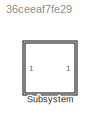
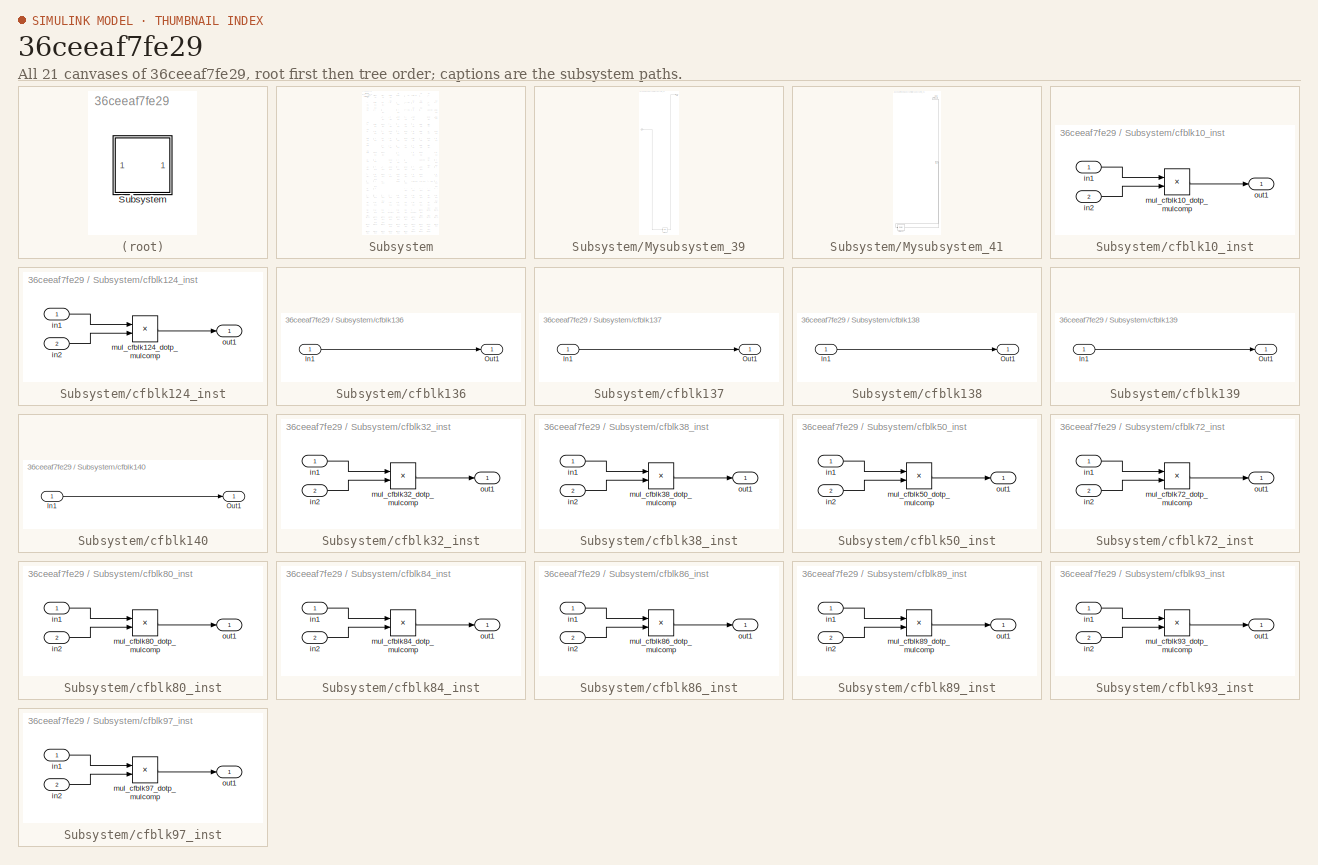
[diagram: thumbnail index - all 21 canvases of the model, root first then tree order]
MODEL slx_36ceeaf7fe29
KIND model
CONFIG AbsTol = auto
CONFIG EnableMultiTasking = off
CONFIG FixedStep = auto
CONFIG MaxStep = auto
CONFIG MinStep = auto
CONFIG RelTol = 1e-3
CONFIG SampleTimeConstraint = Unconstrained
CONFIG SolverName = VariableStepAuto
CONFIG StartTime = 0.0
CONFIG StopTime = 10.0
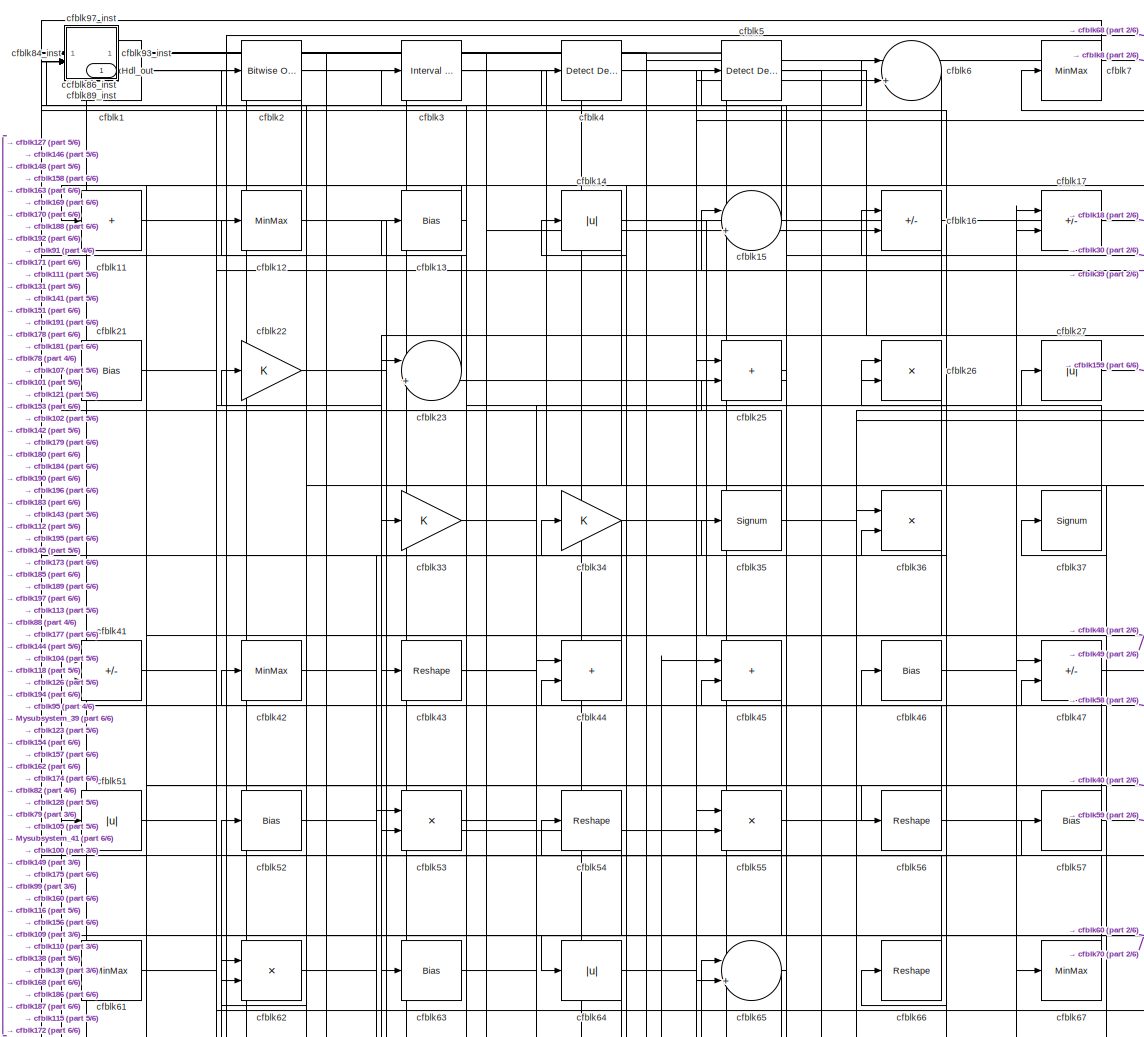
[diagram: Subsystem - part 1/6, top center region]
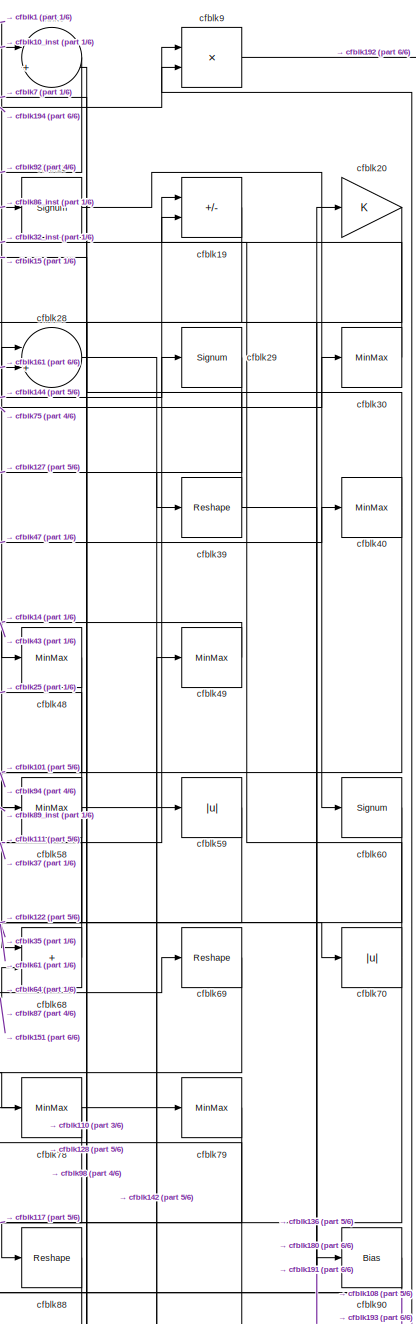
[diagram: Subsystem - part 2/6, top right region]
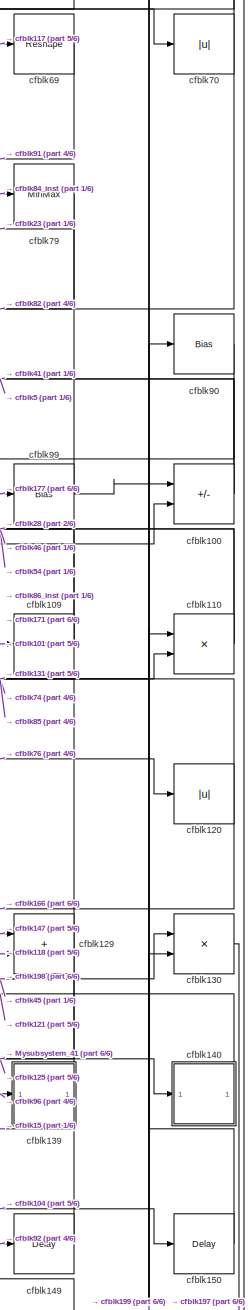
[diagram: Subsystem - part 3/6, middle right region]
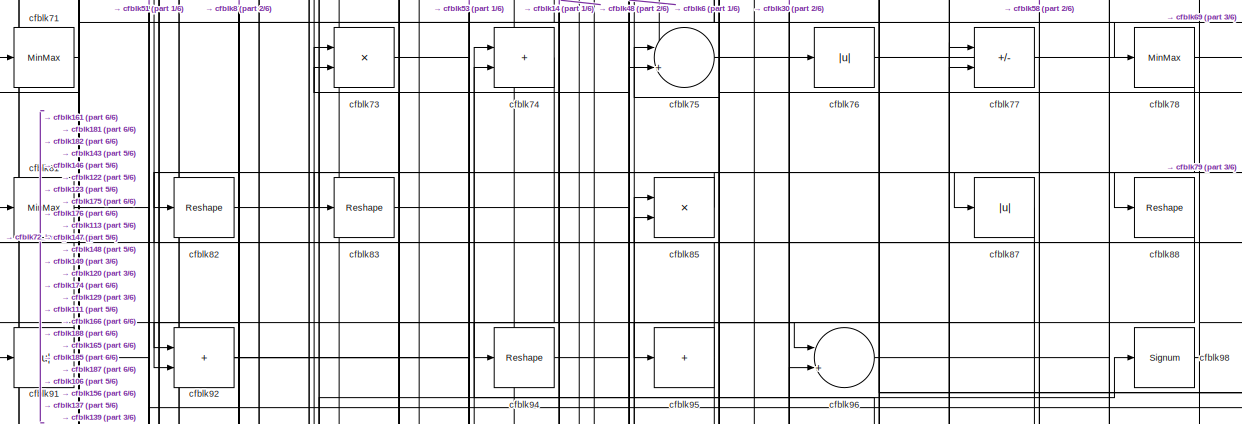
[diagram: Subsystem - part 4/6, full width, middle band]
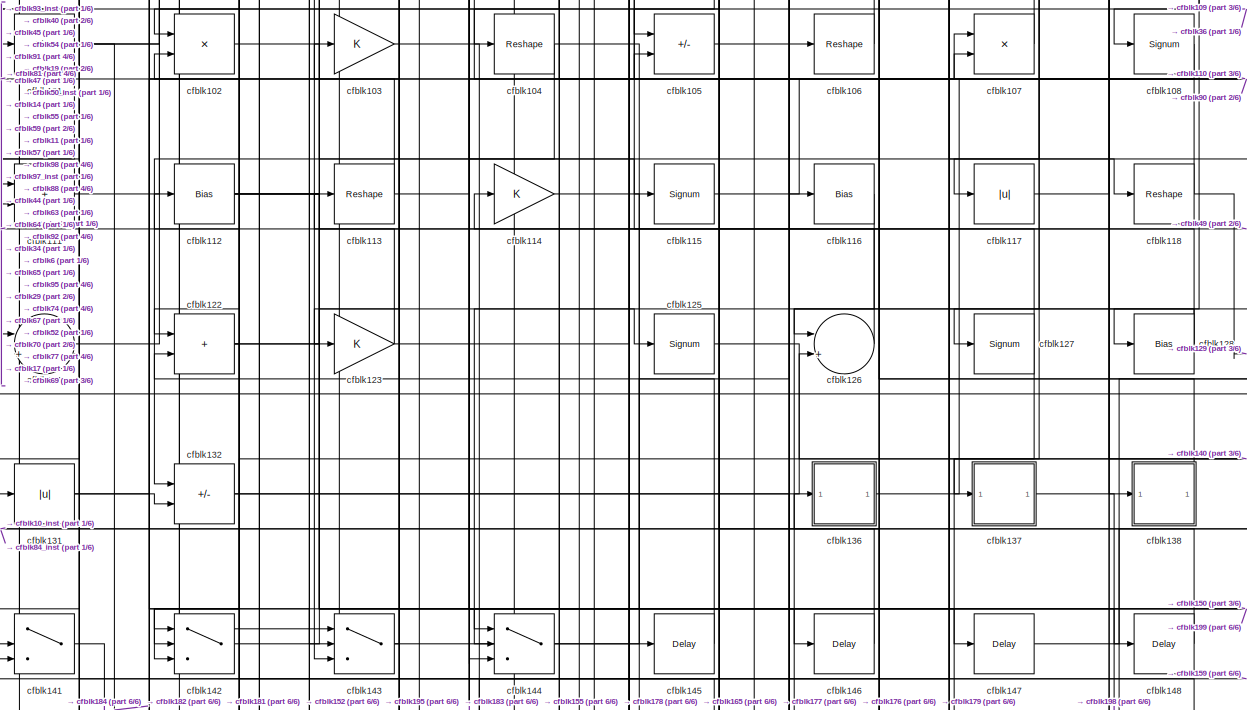
[diagram: Subsystem - part 5/6, full width, middle band]
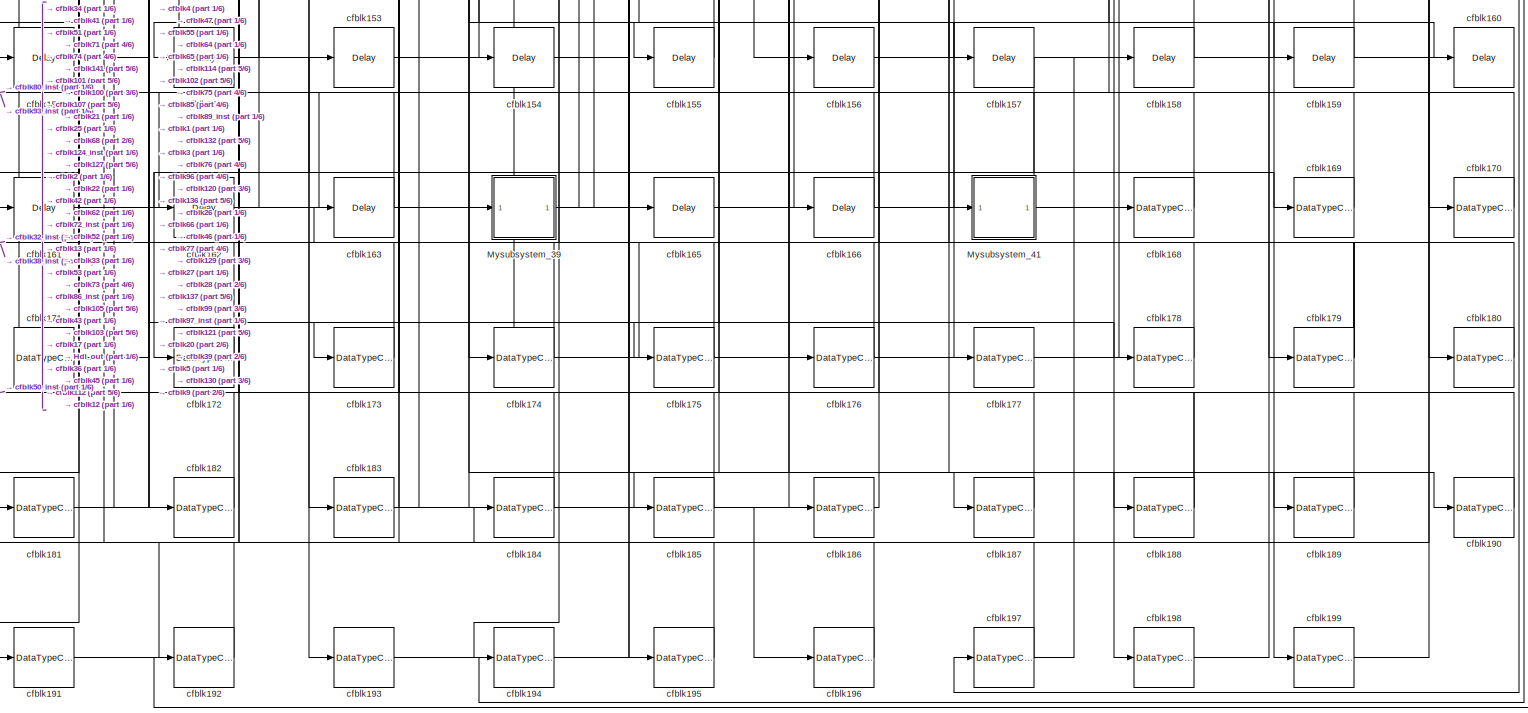
[diagram: Subsystem - part 6/6, full width, bottom band]
BLOCK [SubSystem] Subsystem
BLOCK [Outport] Subsystem/Hdl_out
  OutDataTypeStr = uint8
  SampleTime = 1
BLOCK [SubSystem] Subsystem/Mysubsystem_39
BLOCK [Inport] Subsystem/Mysubsystem_39/In1
  OutDataTypeStr = uint8
  PortDimensions = 1
  SampleTime = 1
BLOCK [Outport] Subsystem/Mysubsystem_39/Out1
  SampleTime = 1
BLOCK [Delay] Subsystem/Mysubsystem_39/cfblk164
  InputPortMap = u0
  SampleTime = 1
BLOCK [SubSystem] Subsystem/Mysubsystem_41
BLOCK [Inport] Subsystem/Mysubsystem_41/In1
  OutDataTypeStr = uint8
  PortDimensions = 1
  SampleTime = 1
BLOCK [Outport] Subsystem/Mysubsystem_41/Out1
  SampleTime = 1
BLOCK [Delay] Subsystem/Mysubsystem_41/cfblk167
  InputPortMap = u0
  SampleTime = 1
BLOCK [Reference] Subsystem/cfblk1  REF=hdlsllib/Logic and Bit
Operations/Bit Slice
  SourceBlock = hdlsllib/Logic and Bit\nOperations/Bit Slice
  SourceType = Bit Slice
BLOCK [Sum] Subsystem/cfblk100
  IconShape = rectangular
  Inputs = +-
  OutDataTypeStr = uint8
BLOCK [Bias] Subsystem/cfblk101
  Bias = 0.0
  SaturateOnIntegerOverflow = off
BLOCK [Product] Subsystem/cfblk102
  Inputs = */
  OutDataTypeStr = uint8
  RndMeth = Zero
  SaturateOnIntegerOverflow = on
BLOCK [Gain] Subsystem/cfblk103
  OutDataTypeStr = uint8
BLOCK [Reshape] Subsystem/cfblk104
BLOCK [Sum] Subsystem/cfblk105
  IconShape = rectangular
  Inputs = +-
  OutDataTypeStr = uint8
BLOCK [Reshape] Subsystem/cfblk106
BLOCK [Product] Subsystem/cfblk107
  Inputs = */
  OutDataTypeStr = uint8
  RndMeth = Zero
  SaturateOnIntegerOverflow = on
BLOCK [Signum] Subsystem/cfblk108
BLOCK [Bias] Subsystem/cfblk109
  Bias = 0.0
  SaturateOnIntegerOverflow = off
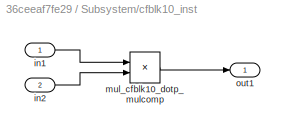
BLOCK [SubSystem] Subsystem/cfblk10_inst
BLOCK [Inport] Subsystem/cfblk10_inst/in1
  OutDataTypeStr = uint8
  SampleTime = 1
BLOCK [Inport] Subsystem/cfblk10_inst/in2
  OutDataTypeStr = uint8
  Port = 2
  SampleTime = 1
BLOCK [Product] Subsystem/cfblk10_inst/mul_cfblk10_dotp_mulcomp
  Inputs = **
  OutDataTypeStr = uint8
  SampleTime = 1
BLOCK [Outport] Subsystem/cfblk10_inst/out1
  OutDataTypeStr = uint8
  SampleTime = 1
BLOCK [Sum] Subsystem/cfblk11
  IconShape = rectangular
  Inputs = +
  OutDataTypeStr = uint8
BLOCK [Product] Subsystem/cfblk110
  Inputs = */
  OutDataTypeStr = uint8
  RndMeth = Zero
  SaturateOnIntegerOverflow = on
BLOCK [Sum] Subsystem/cfblk111
  IconShape = rectangular
  OutDataTypeStr = uint8
BLOCK [Bias] Subsystem/cfblk112
  Bias = 0.0
  SaturateOnIntegerOverflow = off
BLOCK [Reshape] Subsystem/cfblk113
BLOCK [Gain] Subsystem/cfblk114
  OutDataTypeStr = uint8
BLOCK [Signum] Subsystem/cfblk115
BLOCK [Bias] Subsystem/cfblk116
  Bias = 0.0
  SaturateOnIntegerOverflow = off
BLOCK [Abs] Subsystem/cfblk117
  OutDataTypeStr = uint8
  SaturateOnIntegerOverflow = off
BLOCK [Reshape] Subsystem/cfblk118
BLOCK [MinMax] Subsystem/cfblk12
  OutDataTypeStr = uint8
BLOCK [Abs] Subsystem/cfblk120
  OutDataTypeStr = uint8
  SaturateOnIntegerOverflow = off
BLOCK [Sum] Subsystem/cfblk121
  Inputs = |++
  OutDataTypeStr = uint8
BLOCK [Sum] Subsystem/cfblk122
  IconShape = rectangular
  OutDataTypeStr = uint8
BLOCK [Gain] Subsystem/cfblk123
  OutDataTypeStr = uint8
BLOCK [SubSystem] Subsystem/cfblk124_inst
BLOCK [Inport] Subsystem/cfblk124_inst/in1
  OutDataTypeStr = uint8
  SampleTime = 1
BLOCK [Inport] Subsystem/cfblk124_inst/in2
  OutDataTypeStr = uint8
  Port = 2
  SampleTime = 1
BLOCK [Product] Subsystem/cfblk124_inst/mul_cfblk124_dotp_mulcomp
  Inputs = **
  OutDataTypeStr = uint8
  SampleTime = 1
BLOCK [Outport] Subsystem/cfblk124_inst/out1
  OutDataTypeStr = uint8
  SampleTime = 1
BLOCK [Signum] Subsystem/cfblk125
BLOCK [Sum] Subsystem/cfblk126
  Inputs = |++
  OutDataTypeStr = uint8
BLOCK [Signum] Subsystem/cfblk127
BLOCK [Bias] Subsystem/cfblk128
  Bias = 0.0
  SaturateOnIntegerOverflow = off
BLOCK [Sum] Subsystem/cfblk129
  IconShape = rectangular
  OutDataTypeStr = uint8
BLOCK [Bias] Subsystem/cfblk13
  Bias = 0.0
  SaturateOnIntegerOverflow = off
BLOCK [Product] Subsystem/cfblk130
  Inputs = */
  OutDataTypeStr = uint8
  RndMeth = Zero
  SaturateOnIntegerOverflow = on
BLOCK [Abs] Subsystem/cfblk131
  OutDataTypeStr = uint8
  SaturateOnIntegerOverflow = off
BLOCK [Sum] Subsystem/cfblk132
  IconShape = rectangular
  Inputs = +-
  OutDataTypeStr = uint8
BLOCK [SubSystem] Subsystem/cfblk136
BLOCK [Inport] Subsystem/cfblk136/In1
  OutDataTypeStr = uint8
  PortDimensions = 1
  SampleTime = 1
BLOCK [Outport] Subsystem/cfblk136/Out1
  SampleTime = 1
BLOCK [SubSystem] Subsystem/cfblk137
BLOCK [Inport] Subsystem/cfblk137/In1
  OutDataTypeStr = uint8
  PortDimensions = 1
  SampleTime = 1
BLOCK [Outport] Subsystem/cfblk137/Out1
  SampleTime = 1
BLOCK [SubSystem] Subsystem/cfblk138
BLOCK [Inport] Subsystem/cfblk138/In1
  OutDataTypeStr = uint8
  PortDimensions = 1
  SampleTime = 1
BLOCK [Outport] Subsystem/cfblk138/Out1
  SampleTime = 1
BLOCK [SubSystem] Subsystem/cfblk139
BLOCK [Inport] Subsystem/cfblk139/In1
  OutDataTypeStr = uint8
  PortDimensions = 1
  SampleTime = 1
BLOCK [Outport] Subsystem/cfblk139/Out1
  SampleTime = 1
BLOCK [Abs] Subsystem/cfblk14
  OutDataTypeStr = uint8
  SaturateOnIntegerOverflow = off
BLOCK [SubSystem] Subsystem/cfblk140
BLOCK [Inport] Subsystem/cfblk140/In1
  OutDataTypeStr = uint8
  PortDimensions = 1
  SampleTime = 1
BLOCK [Outport] Subsystem/cfblk140/Out1
  SampleTime = 1
BLOCK [Switch] Subsystem/cfblk141
  InputSameDT = off
  OutDataTypeStr = uint8
  SaturateOnIntegerOverflow = off
BLOCK [Switch] Subsystem/cfblk142
  InputSameDT = off
  OutDataTypeStr = uint8
  SaturateOnIntegerOverflow = off
BLOCK [Switch] Subsystem/cfblk143
  InputSameDT = off
  OutDataTypeStr = uint8
  SaturateOnIntegerOverflow = off
BLOCK [Switch] Subsystem/cfblk144
  InputSameDT = off
  OutDataTypeStr = uint8
  SaturateOnIntegerOverflow = off
BLOCK [Delay] Subsystem/cfblk145
  InputPortMap = u0
  SampleTime = 1
BLOCK [Delay] Subsystem/cfblk146
  InputPortMap = u0
  SampleTime = 1
BLOCK [Delay] Subsystem/cfblk147
  InputPortMap = u0
  SampleTime = 1
BLOCK [Delay] Subsystem/cfblk148
  InputPortMap = u0
  SampleTime = 1
BLOCK [Delay] Subsystem/cfblk149
  InputPortMap = u0
  SampleTime = 1
BLOCK [Sum] Subsystem/cfblk15
  Inputs = |++
  OutDataTypeStr = uint8
BLOCK [Delay] Subsystem/cfblk150
  InputPortMap = u0
  SampleTime = 1
BLOCK [Delay] Subsystem/cfblk151
  InputPortMap = u0
  SampleTime = 1
BLOCK [Delay] Subsystem/cfblk152
  InputPortMap = u0
  SampleTime = 1
BLOCK [Delay] Subsystem/cfblk153
  InputPortMap = u0
  SampleTime = 1
BLOCK [Delay] Subsystem/cfblk154
  InputPortMap = u0
  SampleTime = 1
BLOCK [Delay] Subsystem/cfblk155
  InputPortMap = u0
  SampleTime = 1
BLOCK [Delay] Subsystem/cfblk156
  InputPortMap = u0
  SampleTime = 1
BLOCK [Delay] Subsystem/cfblk157
  InputPortMap = u0
  SampleTime = 1
BLOCK [Delay] Subsystem/cfblk158
  InputPortMap = u0
  SampleTime = 1
BLOCK [Delay] Subsystem/cfblk159
  InputPortMap = u0
  SampleTime = 1
BLOCK [Sum] Subsystem/cfblk16
  IconShape = rectangular
  Inputs = +-
  OutDataTypeStr = uint8
BLOCK [Delay] Subsystem/cfblk160
  InputPortMap = u0
  SampleTime = 1
BLOCK [Delay] Subsystem/cfblk161
  InputPortMap = u0
  SampleTime = 1
BLOCK [Delay] Subsystem/cfblk162
  InputPortMap = u0
  SampleTime = 1
BLOCK [Delay] Subsystem/cfblk163
  InputPortMap = u0
  SampleTime = 1
BLOCK [Delay] Subsystem/cfblk165
  InputPortMap = u0
  SampleTime = 1
BLOCK [Delay] Subsystem/cfblk166
  InputPortMap = u0
  SampleTime = 1
BLOCK [DataTypeConversion] Subsystem/cfblk168
  OutDataTypeStr = uint8
  RndMeth = Floor
  SaturateOnIntegerOverflow = off
BLOCK [DataTypeConversion] Subsystem/cfblk169
  OutDataTypeStr = uint8
  RndMeth = Floor
  SaturateOnIntegerOverflow = off
BLOCK [Sum] Subsystem/cfblk17
  IconShape = rectangular
  Inputs = +-
  OutDataTypeStr = uint8
BLOCK [DataTypeConversion] Subsystem/cfblk170
  OutDataTypeStr = uint8
  RndMeth = Floor
  SaturateOnIntegerOverflow = off
BLOCK [DataTypeConversion] Subsystem/cfblk171
  OutDataTypeStr = uint8
  RndMeth = Floor
  SaturateOnIntegerOverflow = off
BLOCK [DataTypeConversion] Subsystem/cfblk172
  OutDataTypeStr = uint8
  RndMeth = Floor
  SaturateOnIntegerOverflow = off
BLOCK [DataTypeConversion] Subsystem/cfblk173
  OutDataTypeStr = uint8
  RndMeth = Floor
  SaturateOnIntegerOverflow = off
BLOCK [DataTypeConversion] Subsystem/cfblk174
  OutDataTypeStr = uint8
  RndMeth = Floor
  SaturateOnIntegerOverflow = off
BLOCK [DataTypeConversion] Subsystem/cfblk175
  OutDataTypeStr = uint8
  RndMeth = Floor
  SaturateOnIntegerOverflow = off
BLOCK [DataTypeConversion] Subsystem/cfblk176
  OutDataTypeStr = uint8
  RndMeth = Floor
  SaturateOnIntegerOverflow = off
BLOCK [DataTypeConversion] Subsystem/cfblk177
  OutDataTypeStr = uint8
  RndMeth = Floor
  SaturateOnIntegerOverflow = off
BLOCK [DataTypeConversion] Subsystem/cfblk178
  OutDataTypeStr = uint8
  RndMeth = Floor
  SaturateOnIntegerOverflow = off
BLOCK [DataTypeConversion] Subsystem/cfblk179
  OutDataTypeStr = uint8
  RndMeth = Floor
  SaturateOnIntegerOverflow = off
BLOCK [Signum] Subsystem/cfblk18
BLOCK [DataTypeConversion] Subsystem/cfblk180
  OutDataTypeStr = uint8
  RndMeth = Floor
  SaturateOnIntegerOverflow = off
BLOCK [DataTypeConversion] Subsystem/cfblk181
  OutDataTypeStr = uint8
  RndMeth = Floor
  SaturateOnIntegerOverflow = off
BLOCK [DataTypeConversion] Subsystem/cfblk182
  OutDataTypeStr = uint8
  RndMeth = Floor
  SaturateOnIntegerOverflow = off
BLOCK [DataTypeConversion] Subsystem/cfblk183
  OutDataTypeStr = uint8
  RndMeth = Floor
  SaturateOnIntegerOverflow = off
BLOCK [DataTypeConversion] Subsystem/cfblk184
  OutDataTypeStr = uint8
  RndMeth = Floor
  SaturateOnIntegerOverflow = off
BLOCK [DataTypeConversion] Subsystem/cfblk185
  OutDataTypeStr = uint8
  RndMeth = Floor
  SaturateOnIntegerOverflow = off
BLOCK [DataTypeConversion] Subsystem/cfblk186
  OutDataTypeStr = uint8
  RndMeth = Floor
  SaturateOnIntegerOverflow = off
BLOCK [DataTypeConversion] Subsystem/cfblk187
  OutDataTypeStr = uint8
  RndMeth = Floor
  SaturateOnIntegerOverflow = off
BLOCK [DataTypeConversion] Subsystem/cfblk188
  OutDataTypeStr = uint8
  RndMeth = Floor
  SaturateOnIntegerOverflow = off
BLOCK [DataTypeConversion] Subsystem/cfblk189
  OutDataTypeStr = uint8
  RndMeth = Floor
  SaturateOnIntegerOverflow = off
BLOCK [Sum] Subsystem/cfblk19
  IconShape = rectangular
  Inputs = +-
  OutDataTypeStr = uint8
BLOCK [DataTypeConversion] Subsystem/cfblk190
  OutDataTypeStr = uint8
  RndMeth = Floor
  SaturateOnIntegerOverflow = off
BLOCK [DataTypeConversion] Subsystem/cfblk191
  OutDataTypeStr = uint8
  RndMeth = Floor
  SaturateOnIntegerOverflow = off
BLOCK [DataTypeConversion] Subsystem/cfblk192
  OutDataTypeStr = uint8
  RndMeth = Floor
  SaturateOnIntegerOverflow = off
BLOCK [DataTypeConversion] Subsystem/cfblk193
  OutDataTypeStr = uint8
  RndMeth = Floor
  SaturateOnIntegerOverflow = off
BLOCK [DataTypeConversion] Subsystem/cfblk194
  OutDataTypeStr = uint8
  RndMeth = Floor
  SaturateOnIntegerOverflow = off
BLOCK [DataTypeConversion] Subsystem/cfblk195
  OutDataTypeStr = uint8
  RndMeth = Floor
  SaturateOnIntegerOverflow = off
BLOCK [DataTypeConversion] Subsystem/cfblk196
  OutDataTypeStr = uint8
  RndMeth = Floor
  SaturateOnIntegerOverflow = off
BLOCK [DataTypeConversion] Subsystem/cfblk197
  OutDataTypeStr = uint8
  RndMeth = Floor
  SaturateOnIntegerOverflow = off
BLOCK [DataTypeConversion] Subsystem/cfblk198
  OutDataTypeStr = uint8
  RndMeth = Floor
  SaturateOnIntegerOverflow = off
BLOCK [DataTypeConversion] Subsystem/cfblk199
  OutDataTypeStr = uint8
  RndMeth = Floor
  SaturateOnIntegerOverflow = off
BLOCK [Reference] Subsystem/cfblk2  REF=simulink/Logic and Bit
Operations/Bitwise
Operator
  LibrarySourceBlock = hdlsllib/Logic and Bit\nOperations/Bitwise\nOperator
  SourceBlock = simulink/Logic and Bit\nOperations/Bitwise\nOperator
  SourceType = Bitwise Operator
BLOCK [Gain] Subsystem/cfblk20
  OutDataTypeStr = uint8
BLOCK [Bias] Subsystem/cfblk21
  Bias = 0.0
  SaturateOnIntegerOverflow = off
BLOCK [Gain] Subsystem/cfblk22
  OutDataTypeStr = uint8
BLOCK [Sum] Subsystem/cfblk23
  Inputs = |++
  OutDataTypeStr = uint8
BLOCK [Sum] Subsystem/cfblk25
  IconShape = rectangular
  OutDataTypeStr = uint8
BLOCK [Product] Subsystem/cfblk26
  Inputs = */
  OutDataTypeStr = uint8
  RndMeth = Zero
  SaturateOnIntegerOverflow = on
BLOCK [Abs] Subsystem/cfblk27
  OutDataTypeStr = uint8
  SaturateOnIntegerOverflow = off
BLOCK [Sum] Subsystem/cfblk28
  Inputs = |++
  OutDataTypeStr = uint8
BLOCK [Signum] Subsystem/cfblk29
BLOCK [Reference] Subsystem/cfblk3  REF=hdlsllib/Logic and Bit
Operations/Interval Test
  SourceBlock = hdlsllib/Logic and Bit\nOperations/Interval Test
  SourceType = Interval Test
BLOCK [MinMax] Subsystem/cfblk30
  OutDataTypeStr = uint8
BLOCK [SubSystem] Subsystem/cfblk32_inst
BLOCK [Inport] Subsystem/cfblk32_inst/in1
  OutDataTypeStr = uint8
  SampleTime = 1
BLOCK [Inport] Subsystem/cfblk32_inst/in2
  OutDataTypeStr = uint8
  Port = 2
  SampleTime = 1
BLOCK [Product] Subsystem/cfblk32_inst/mul_cfblk32_dotp_mulcomp
  Inputs = **
  OutDataTypeStr = uint8
  SampleTime = 1
BLOCK [Outport] Subsystem/cfblk32_inst/out1
  OutDataTypeStr = uint8
  SampleTime = 1
BLOCK [Gain] Subsystem/cfblk33
  OutDataTypeStr = uint8
BLOCK [Gain] Subsystem/cfblk34
  OutDataTypeStr = uint8
BLOCK [Signum] Subsystem/cfblk35
BLOCK [Product] Subsystem/cfblk36
  Inputs = */
  OutDataTypeStr = uint8
  RndMeth = Zero
  SaturateOnIntegerOverflow = on
BLOCK [Signum] Subsystem/cfblk37
BLOCK [SubSystem] Subsystem/cfblk38_inst
BLOCK [Inport] Subsystem/cfblk38_inst/in1
  OutDataTypeStr = uint8
  SampleTime = 1
BLOCK [Inport] Subsystem/cfblk38_inst/in2
  OutDataTypeStr = uint8
  Port = 2
  SampleTime = 1
BLOCK [Product] Subsystem/cfblk38_inst/mul_cfblk38_dotp_mulcomp
  Inputs = **
  OutDataTypeStr = uint8
  SampleTime = 1
BLOCK [Outport] Subsystem/cfblk38_inst/out1
  OutDataTypeStr = uint8
  SampleTime = 1
BLOCK [Reshape] Subsystem/cfblk39
BLOCK [Reference] Subsystem/cfblk4  REF=simulink/Logic and Bit
Operations/Detect
Decrease
  LibrarySourceBlock = hdlsllib/Logic and Bit\nOperations/Detect\nDecrease
  SourceBlock = simulink/Logic and Bit\nOperations/Detect\nDecrease
  SourceType = Detect Decrease
BLOCK [MinMax] Subsystem/cfblk40
  OutDataTypeStr = uint8
BLOCK [Sum] Subsystem/cfblk41
  IconShape = rectangular
  Inputs = +-
  OutDataTypeStr = uint8
BLOCK [MinMax] Subsystem/cfblk42
  OutDataTypeStr = uint8
BLOCK [Reshape] Subsystem/cfblk43
BLOCK [Sum] Subsystem/cfblk44
  IconShape = rectangular
  OutDataTypeStr = uint8
BLOCK [Sum] Subsystem/cfblk45
  IconShape = rectangular
  OutDataTypeStr = uint8
BLOCK [Bias] Subsystem/cfblk46
  Bias = 0.0
  SaturateOnIntegerOverflow = off
BLOCK [Sum] Subsystem/cfblk47
  IconShape = rectangular
  Inputs = +-
  OutDataTypeStr = uint8
BLOCK [MinMax] Subsystem/cfblk48
  OutDataTypeStr = uint8
BLOCK [MinMax] Subsystem/cfblk49
  OutDataTypeStr = uint8
BLOCK [Reference] Subsystem/cfblk5  REF=simulink/Logic and Bit
Operations/Detect
Decrease
  LibrarySourceBlock = hdlsllib/Logic and Bit\nOperations/Detect\nDecrease
  SourceBlock = simulink/Logic and Bit\nOperations/Detect\nDecrease
  SourceType = Detect Decrease
BLOCK [SubSystem] Subsystem/cfblk50_inst
BLOCK [Inport] Subsystem/cfblk50_inst/in1
  OutDataTypeStr = uint8
  SampleTime = 1
BLOCK [Inport] Subsystem/cfblk50_inst/in2
  OutDataTypeStr = uint8
  Port = 2
  SampleTime = 1
BLOCK [Product] Subsystem/cfblk50_inst/mul_cfblk50_dotp_mulcomp
  Inputs = **
  OutDataTypeStr = uint8
  SampleTime = 1
BLOCK [Outport] Subsystem/cfblk50_inst/out1
  OutDataTypeStr = uint8
  SampleTime = 1
BLOCK [Abs] Subsystem/cfblk51
  OutDataTypeStr = uint8
  SaturateOnIntegerOverflow = off
BLOCK [Bias] Subsystem/cfblk52
  Bias = 0.0
  SaturateOnIntegerOverflow = off
BLOCK [Product] Subsystem/cfblk53
  Inputs = */
  OutDataTypeStr = uint8
  RndMeth = Zero
  SaturateOnIntegerOverflow = on
BLOCK [Reshape] Subsystem/cfblk54
BLOCK [Product] Subsystem/cfblk55
  Inputs = */
  OutDataTypeStr = uint8
  RndMeth = Zero
  SaturateOnIntegerOverflow = on
BLOCK [Reshape] Subsystem/cfblk56
BLOCK [Bias] Subsystem/cfblk57
  Bias = 0.0
  SaturateOnIntegerOverflow = off
BLOCK [MinMax] Subsystem/cfblk58
  OutDataTypeStr = uint8
BLOCK [Abs] Subsystem/cfblk59
  OutDataTypeStr = uint8
  SaturateOnIntegerOverflow = off
BLOCK [Sum] Subsystem/cfblk6
  Inputs = |++
  OutDataTypeStr = uint8
BLOCK [Signum] Subsystem/cfblk60
BLOCK [MinMax] Subsystem/cfblk61
  OutDataTypeStr = uint8
BLOCK [Product] Subsystem/cfblk62
  Inputs = */
  OutDataTypeStr = uint8
  RndMeth = Zero
  SaturateOnIntegerOverflow = on
BLOCK [Bias] Subsystem/cfblk63
  Bias = 0.0
  SaturateOnIntegerOverflow = off
BLOCK [Abs] Subsystem/cfblk64
  OutDataTypeStr = uint8
  SaturateOnIntegerOverflow = off
BLOCK [Sum] Subsystem/cfblk65
  Inputs = |++
  OutDataTypeStr = uint8
BLOCK [Reshape] Subsystem/cfblk66
BLOCK [MinMax] Subsystem/cfblk67
  OutDataTypeStr = uint8
BLOCK [Sum] Subsystem/cfblk68
  IconShape = rectangular
  OutDataTypeStr = uint8
BLOCK [Reshape] Subsystem/cfblk69
BLOCK [MinMax] Subsystem/cfblk7
  OutDataTypeStr = uint8
BLOCK [Abs] Subsystem/cfblk70
  OutDataTypeStr = uint8
  SaturateOnIntegerOverflow = off
BLOCK [MinMax] Subsystem/cfblk71
  OutDataTypeStr = uint8
BLOCK [SubSystem] Subsystem/cfblk72_inst
BLOCK [Inport] Subsystem/cfblk72_inst/in1
  OutDataTypeStr = uint8
  SampleTime = 1
BLOCK [Inport] Subsystem/cfblk72_inst/in2
  OutDataTypeStr = uint8
  Port = 2
  SampleTime = 1
BLOCK [Product] Subsystem/cfblk72_inst/mul_cfblk72_dotp_mulcomp
  Inputs = **
  OutDataTypeStr = uint8
  SampleTime = 1
BLOCK [Outport] Subsystem/cfblk72_inst/out1
  OutDataTypeStr = uint8
  SampleTime = 1
BLOCK [Product] Subsystem/cfblk73
  Inputs = */
  OutDataTypeStr = uint8
  RndMeth = Zero
  SaturateOnIntegerOverflow = on
BLOCK [Sum] Subsystem/cfblk74
  IconShape = rectangular
  OutDataTypeStr = uint8
BLOCK [Sum] Subsystem/cfblk75
  Inputs = |++
  OutDataTypeStr = uint8
BLOCK [Abs] Subsystem/cfblk76
  OutDataTypeStr = uint8
  SaturateOnIntegerOverflow = off
BLOCK [Sum] Subsystem/cfblk77
  IconShape = rectangular
  Inputs = +-
  OutDataTypeStr = uint8
BLOCK [MinMax] Subsystem/cfblk78
  OutDataTypeStr = uint8
BLOCK [MinMax] Subsystem/cfblk79
  OutDataTypeStr = uint8
BLOCK [Sum] Subsystem/cfblk8
  Inputs = |++
  OutDataTypeStr = uint8
BLOCK [SubSystem] Subsystem/cfblk80_inst
BLOCK [Inport] Subsystem/cfblk80_inst/in1
  OutDataTypeStr = uint8
  SampleTime = 1
BLOCK [Inport] Subsystem/cfblk80_inst/in2
  OutDataTypeStr = uint8
  Port = 2
  SampleTime = 1
BLOCK [Product] Subsystem/cfblk80_inst/mul_cfblk80_dotp_mulcomp
  Inputs = **
  OutDataTypeStr = uint8
  SampleTime = 1
BLOCK [Outport] Subsystem/cfblk80_inst/out1
  OutDataTypeStr = uint8
  SampleTime = 1
BLOCK [MinMax] Subsystem/cfblk81
  OutDataTypeStr = uint8
BLOCK [Reshape] Subsystem/cfblk82
BLOCK [Reshape] Subsystem/cfblk83
BLOCK [SubSystem] Subsystem/cfblk84_inst
BLOCK [Inport] Subsystem/cfblk84_inst/in1
  OutDataTypeStr = uint8
  SampleTime = 1
BLOCK [Inport] Subsystem/cfblk84_inst/in2
  OutDataTypeStr = uint8
  Port = 2
  SampleTime = 1
BLOCK [Product] Subsystem/cfblk84_inst/mul_cfblk84_dotp_mulcomp
  Inputs = **
  OutDataTypeStr = uint8
  SampleTime = 1
BLOCK [Outport] Subsystem/cfblk84_inst/out1
  OutDataTypeStr = uint8
  SampleTime = 1
BLOCK [Product] Subsystem/cfblk85
  Inputs = */
  OutDataTypeStr = uint8
  RndMeth = Zero
  SaturateOnIntegerOverflow = on
BLOCK [SubSystem] Subsystem/cfblk86_inst
BLOCK [Inport] Subsystem/cfblk86_inst/in1
  OutDataTypeStr = uint8
  SampleTime = 1
BLOCK [Inport] Subsystem/cfblk86_inst/in2
  OutDataTypeStr = uint8
  Port = 2
  SampleTime = 1
BLOCK [Product] Subsystem/cfblk86_inst/mul_cfblk86_dotp_mulcomp
  Inputs = **
  OutDataTypeStr = uint8
  SampleTime = 1
BLOCK [Outport] Subsystem/cfblk86_inst/out1
  OutDataTypeStr = uint8
  SampleTime = 1
BLOCK [Abs] Subsystem/cfblk87
  OutDataTypeStr = uint8
  SaturateOnIntegerOverflow = off
BLOCK [Reshape] Subsystem/cfblk88
BLOCK [SubSystem] Subsystem/cfblk89_inst
BLOCK [Inport] Subsystem/cfblk89_inst/in1
  OutDataTypeStr = uint8
  SampleTime = 1
BLOCK [Inport] Subsystem/cfblk89_inst/in2
  OutDataTypeStr = uint8
  Port = 2
  SampleTime = 1
BLOCK [Product] Subsystem/cfblk89_inst/mul_cfblk89_dotp_mulcomp
  Inputs = **
  OutDataTypeStr = uint8
  SampleTime = 1
BLOCK [Outport] Subsystem/cfblk89_inst/out1
  OutDataTypeStr = uint8
  SampleTime = 1
BLOCK [Product] Subsystem/cfblk9
  Inputs = */
  OutDataTypeStr = uint8
  RndMeth = Zero
  SaturateOnIntegerOverflow = on
BLOCK [Bias] Subsystem/cfblk90
  Bias = 0.0
  SaturateOnIntegerOverflow = off
BLOCK [Abs] Subsystem/cfblk91
  OutDataTypeStr = uint8
  SaturateOnIntegerOverflow = off
BLOCK [Sum] Subsystem/cfblk92
  IconShape = rectangular
  OutDataTypeStr = uint8
BLOCK [SubSystem] Subsystem/cfblk93_inst
BLOCK [Inport] Subsystem/cfblk93_inst/in1
  OutDataTypeStr = uint8
  SampleTime = 1
BLOCK [Inport] Subsystem/cfblk93_inst/in2
  OutDataTypeStr = uint8
  Port = 2
  SampleTime = 1
BLOCK [Product] Subsystem/cfblk93_inst/mul_cfblk93_dotp_mulcomp
  Inputs = **
  OutDataTypeStr = uint8
  SampleTime = 1
BLOCK [Outport] Subsystem/cfblk93_inst/out1
  OutDataTypeStr = uint8
  SampleTime = 1
BLOCK [Reshape] Subsystem/cfblk94
BLOCK [Sum] Subsystem/cfblk95
  IconShape = rectangular
  Inputs = +
  OutDataTypeStr = uint8
BLOCK [Sum] Subsystem/cfblk96
  Inputs = |++
  OutDataTypeStr = uint8
BLOCK [SubSystem] Subsystem/cfblk97_inst
BLOCK [Inport] Subsystem/cfblk97_inst/in1
  OutDataTypeStr = uint8
  SampleTime = 1
BLOCK [Inport] Subsystem/cfblk97_inst/in2
  OutDataTypeStr = uint8
  Port = 2
  SampleTime = 1
BLOCK [Product] Subsystem/cfblk97_inst/mul_cfblk97_dotp_mulcomp
  Inputs = **
  OutDataTypeStr = uint8
  SampleTime = 1
BLOCK [Outport] Subsystem/cfblk97_inst/out1
  OutDataTypeStr = uint8
  SampleTime = 1
BLOCK [Signum] Subsystem/cfblk98
BLOCK [Bias] Subsystem/cfblk99
  Bias = 0.0
  SaturateOnIntegerOverflow = off
LINE Subsystem/Mysubsystem_39/In1:1 -> Subsystem/Mysubsystem_39/cfblk164:1
LINE Subsystem/Mysubsystem_39/cfblk164:1 -> Subsystem/Mysubsystem_39/Out1:1
LINE Subsystem/Mysubsystem_39:1 -> Subsystem/cfblk45:1
LINE Subsystem/Mysubsystem_41/In1:1 -> Subsystem/Mysubsystem_41/cfblk167:1
LINE Subsystem/Mysubsystem_41/cfblk167:1 -> Subsystem/Mysubsystem_41/Out1:1
LINE Subsystem/Mysubsystem_41:1 -> Subsystem/cfblk89_inst:2
NET Subsystem/cfblk100:1 -> Subsystem/cfblk41:1, Subsystem/cfblk5:1
NET Subsystem/cfblk101:1 -> Subsystem/cfblk109:1, Subsystem/cfblk141:3, Subsystem/cfblk182:1, Subsystem/cfblk36:2
LINE Subsystem/cfblk102:1 -> Subsystem/cfblk118:1
LINE Subsystem/cfblk103:1 -> Subsystem/cfblk155:1
NET Subsystem/cfblk104:1 -> Subsystem/cfblk132:1, Subsystem/cfblk150:1
LINE Subsystem/cfblk105:1 -> Subsystem/cfblk106:1
LINE Subsystem/cfblk106:1 -> Subsystem/cfblk74:1
LINE Subsystem/cfblk107:1 -> Subsystem/cfblk52:1
LINE Subsystem/cfblk108:1 -> Subsystem/cfblk107:1
NET Subsystem/cfblk109:1 -> Subsystem/cfblk46:1, Subsystem/cfblk54:1
LINE Subsystem/cfblk10_inst/in1:1 -> Subsystem/cfblk10_inst/mul_cfblk10_dotp_mulcomp:1
LINE Subsystem/cfblk10_inst/in2:1 -> Subsystem/cfblk10_inst/mul_cfblk10_dotp_mulcomp:2
LINE Subsystem/cfblk10_inst/mul_cfblk10_dotp_mulcomp:1 -> Subsystem/cfblk10_inst/out1:1
LINE Subsystem/cfblk10_inst:1 -> Subsystem/cfblk8:1
NET Subsystem/cfblk110:1 -> Subsystem/cfblk28:1, Subsystem/cfblk86_inst:2
LINE Subsystem/cfblk111:1 -> Subsystem/cfblk19:1
NET Subsystem/cfblk112:1 -> Subsystem/cfblk144:2, Subsystem/cfblk165:1, Subsystem/cfblk199:1, Subsystem/cfblk57:1
NET Subsystem/cfblk113:1 -> Subsystem/cfblk44:1, Subsystem/cfblk81:1
LINE Subsystem/cfblk114:1 -> Subsystem/cfblk177:1
LINE Subsystem/cfblk115:1 -> Subsystem/cfblk67:1
LINE Subsystem/cfblk116:1 -> Subsystem/cfblk144:1
LINE Subsystem/cfblk117:1 -> Subsystem/cfblk69:1
NET Subsystem/cfblk118:1 -> Subsystem/cfblk129:2, Subsystem/cfblk44:2
LINE Subsystem/cfblk11:1 -> Subsystem/cfblk143:3
NET Subsystem/cfblk120:1 -> Subsystem/cfblk166:1, Subsystem/cfblk74:2
LINE Subsystem/cfblk121:1 -> Subsystem/cfblk47:1
NET Subsystem/cfblk122:1 -> Subsystem/cfblk125:1, Subsystem/cfblk142:3, Subsystem/cfblk98:1
NET Subsystem/cfblk123:1 -> Subsystem/cfblk113:1, Subsystem/cfblk6:2
LINE Subsystem/cfblk124_inst/in1:1 -> Subsystem/cfblk124_inst/mul_cfblk124_dotp_mulcomp:1
LINE Subsystem/cfblk124_inst/in2:1 -> Subsystem/cfblk124_inst/mul_cfblk124_dotp_mulcomp:2
LINE Subsystem/cfblk124_inst/mul_cfblk124_dotp_mulcomp:1 -> Subsystem/cfblk124_inst/out1:1
LINE Subsystem/cfblk124_inst:1 -> Subsystem/cfblk153:1
LINE Subsystem/cfblk125:1 -> Subsystem/cfblk140:1
LINE Subsystem/cfblk126:1 -> Subsystem/cfblk34:1
NET Subsystem/cfblk127:1 -> Subsystem/cfblk124_inst:2, Subsystem/cfblk152:1
NET Subsystem/cfblk128:1 -> Subsystem/cfblk126:1, Subsystem/cfblk65:1
NET Subsystem/cfblk129:1 -> Subsystem/Mysubsystem_41:1, Subsystem/cfblk85:1
LINE Subsystem/cfblk12:1 -> Subsystem/cfblk195:1
LINE Subsystem/cfblk130:1 -> Subsystem/cfblk197:1
NET Subsystem/cfblk131:1 -> Subsystem/cfblk110:2, Subsystem/cfblk132:2
NET Subsystem/cfblk132:1 -> Subsystem/cfblk126:2, Subsystem/cfblk176:1
LINE Subsystem/cfblk136/In1:1 -> Subsystem/cfblk136/Out1:1
LINE Subsystem/cfblk136:1 -> Subsystem/cfblk90:1
LINE Subsystem/cfblk137/In1:1 -> Subsystem/cfblk137/Out1:1
LINE Subsystem/cfblk137:1 -> Subsystem/cfblk198:1
LINE Subsystem/cfblk138/In1:1 -> Subsystem/cfblk138/Out1:1
LINE Subsystem/cfblk138:1 -> Subsystem/cfblk36:1
LINE Subsystem/cfblk139/In1:1 -> Subsystem/cfblk139/Out1:1
LINE Subsystem/cfblk139:1 -> Subsystem/cfblk45:2
NET Subsystem/cfblk13:1 -> Subsystem/cfblk11:1, Subsystem/cfblk173:1
LINE Subsystem/cfblk140/In1:1 -> Subsystem/cfblk140/Out1:1
LINE Subsystem/cfblk140:1 -> Subsystem/cfblk121:1
LINE Subsystem/cfblk141:1 -> Subsystem/cfblk184:1
LINE Subsystem/cfblk142:1 -> Subsystem/cfblk49:1
LINE Subsystem/cfblk143:1 -> Subsystem/cfblk103:1
LINE Subsystem/cfblk144:1 -> Subsystem/cfblk29:1
LINE Subsystem/cfblk145:1 -> Subsystem/cfblk122:2
LINE Subsystem/cfblk146:1 -> Subsystem/cfblk84_inst:1
LINE Subsystem/cfblk147:1 -> Subsystem/cfblk129:1
LINE Subsystem/cfblk148:1 -> Subsystem/cfblk10_inst:2
LINE Subsystem/cfblk149:1 -> Subsystem/cfblk15:2
NET Subsystem/cfblk14:1 -> Subsystem/cfblk142:2, Subsystem/cfblk48:1
LINE Subsystem/cfblk150:1 -> Subsystem/cfblk110:1
LINE Subsystem/cfblk151:1 -> Subsystem/cfblk68:2
LINE Subsystem/cfblk152:1 -> Subsystem/cfblk193:1
LINE Subsystem/cfblk153:1 -> Subsystem/cfblk17:2
LINE Subsystem/cfblk154:1 -> Subsystem/cfblk47:2
LINE Subsystem/cfblk155:1 -> Subsystem/cfblk102:2
LINE Subsystem/cfblk156:1 -> Subsystem/cfblk77:1
LINE Subsystem/cfblk157:1 -> Subsystem/cfblk172:1
LINE Subsystem/cfblk158:1 -> Subsystem/cfblk97_inst:2
LINE Subsystem/cfblk159:1 -> Subsystem/cfblk121:2
LINE Subsystem/cfblk15:1 -> Subsystem/cfblk84_inst:2
LINE Subsystem/cfblk160:1 -> Subsystem/cfblk1:1
LINE Subsystem/cfblk161:1 -> Subsystem/cfblk28:2
LINE Subsystem/cfblk162:1 -> Subsystem/cfblk55:1
LINE Subsystem/cfblk163:1 -> Subsystem/cfblk93_inst:1
LINE Subsystem/cfblk165:1 -> Subsystem/cfblk96:2
LINE Subsystem/cfblk166:1 -> Subsystem/cfblk75:1
LINE Subsystem/cfblk168:1 -> Subsystem/cfblk66:1
LINE Subsystem/cfblk169:1 -> Subsystem/cfblk80_inst:1
LINE Subsystem/cfblk16:1 -> Subsystem/cfblk63:1
LINE Subsystem/cfblk170:1 -> Subsystem/cfblk80_inst:2
LINE Subsystem/cfblk171:1 -> Subsystem/cfblk100:2
LINE Subsystem/cfblk172:1 -> Subsystem/cfblk38_inst:1
LINE Subsystem/cfblk173:1 -> Subsystem/cfblk38_inst:2
NET Subsystem/cfblk174:1 -> Subsystem/cfblk32_inst:2, Subsystem/cfblk65:2, Subsystem/cfblk77:2
LINE Subsystem/cfblk175:1 -> Subsystem/cfblk73:1
LINE Subsystem/cfblk176:1 -> Subsystem/cfblk73:2
NET Subsystem/cfblk177:1 -> Subsystem/Hdl_out:1, Subsystem/cfblk99:1
LINE Subsystem/cfblk178:1 -> Subsystem/cfblk114:1
NET Subsystem/cfblk179:1 -> Subsystem/cfblk136:1, Subsystem/cfblk41:2, Subsystem/cfblk51:1, Subsystem/cfblk62:2
LINE Subsystem/cfblk17:1 -> Subsystem/cfblk138:1
LINE Subsystem/cfblk180:1 -> Subsystem/cfblk22:1
NET Subsystem/cfblk181:1 -> Subsystem/cfblk107:2, Subsystem/cfblk17:1, Subsystem/cfblk25:2
LINE Subsystem/cfblk182:1 -> Subsystem/cfblk71:1
NET Subsystem/cfblk183:1 -> Subsystem/cfblk105:2, Subsystem/cfblk163:1
LINE Subsystem/cfblk184:1 -> Subsystem/cfblk42:1
NET Subsystem/cfblk185:1 -> Subsystem/cfblk196:1, Subsystem/cfblk53:2, Subsystem/cfblk76:1
LINE Subsystem/cfblk186:1 -> Subsystem/cfblk26:1
LINE Subsystem/cfblk187:1 -> Subsystem/cfblk26:2
NET Subsystem/cfblk188:1 -> Subsystem/cfblk50_inst:2, Subsystem/cfblk85:2
LINE Subsystem/cfblk189:1 -> Subsystem/cfblk33:1
LINE Subsystem/cfblk18:1 -> Subsystem/cfblk60:1
LINE Subsystem/cfblk190:1 -> Subsystem/cfblk2:1
LINE Subsystem/cfblk191:1 -> Subsystem/cfblk20:1
LINE Subsystem/cfblk192:1 -> Subsystem/cfblk97_inst:1
LINE Subsystem/cfblk193:1 -> Subsystem/cfblk9:1
LINE Subsystem/cfblk194:1 -> Subsystem/cfblk9:2
LINE Subsystem/cfblk195:1 -> Subsystem/cfblk112:1
LINE Subsystem/cfblk196:1 -> Subsystem/cfblk12:1
NET Subsystem/cfblk197:1 -> Subsystem/cfblk13:1, Subsystem/cfblk158:1
LINE Subsystem/cfblk198:1 -> Subsystem/cfblk130:1
LINE Subsystem/cfblk199:1 -> Subsystem/cfblk130:2
LINE Subsystem/cfblk19:1 -> Subsystem/cfblk128:1
NET Subsystem/cfblk1:1 -> Subsystem/cfblk56:1, Subsystem/cfblk68:1
LINE Subsystem/cfblk20:1 -> Subsystem/cfblk58:1
LINE Subsystem/cfblk21:1 -> Subsystem/cfblk178:1
LINE Subsystem/cfblk22:1 -> Subsystem/cfblk179:1
LINE Subsystem/cfblk23:1 -> Subsystem/cfblk93_inst:2
LINE Subsystem/cfblk25:1 -> Subsystem/cfblk175:1
LINE Subsystem/cfblk26:1 -> Subsystem/cfblk185:1
LINE Subsystem/cfblk27:1 -> Subsystem/cfblk159:1
LINE Subsystem/cfblk28:1 -> Subsystem/cfblk39:1
LINE Subsystem/cfblk29:1 -> Subsystem/cfblk127:1
LINE Subsystem/cfblk2:1 -> Subsystem/cfblk191:1
LINE Subsystem/cfblk30:1 -> Subsystem/cfblk32_inst:1
LINE Subsystem/cfblk32_inst/in1:1 -> Subsystem/cfblk32_inst/mul_cfblk32_dotp_mulcomp:1
LINE Subsystem/cfblk32_inst/in2:1 -> Subsystem/cfblk32_inst/mul_cfblk32_dotp_mulcomp:2
LINE Subsystem/cfblk32_inst/mul_cfblk32_dotp_mulcomp:1 -> Subsystem/cfblk32_inst/out1:1
LINE Subsystem/cfblk32_inst:1 -> Subsystem/cfblk154:1
LINE Subsystem/cfblk33:1 -> Subsystem/cfblk188:1
NET Subsystem/cfblk34:1 -> Subsystem/cfblk116:1, Subsystem/cfblk151:1
NET Subsystem/cfblk35:1 -> Subsystem/cfblk21:1, Subsystem/cfblk70:1
NET Subsystem/cfblk36:1 -> Subsystem/cfblk194:1, Subsystem/cfblk62:1
LINE Subsystem/cfblk37:1 -> Subsystem/cfblk89_inst:1
LINE Subsystem/cfblk38_inst/in1:1 -> Subsystem/cfblk38_inst/mul_cfblk38_dotp_mulcomp:1
LINE Subsystem/cfblk38_inst/in2:1 -> Subsystem/cfblk38_inst/mul_cfblk38_dotp_mulcomp:2
LINE Subsystem/cfblk38_inst/mul_cfblk38_dotp_mulcomp:1 -> Subsystem/cfblk38_inst/out1:1
LINE Subsystem/cfblk38_inst:1 -> Subsystem/cfblk171:1
NET Subsystem/cfblk39:1 -> Subsystem/cfblk15:1, Subsystem/cfblk180:1
LINE Subsystem/cfblk3:1 -> Subsystem/cfblk156:1
NET Subsystem/cfblk40:1 -> Subsystem/cfblk101:1, Subsystem/cfblk7:1
LINE Subsystem/cfblk41:1 -> Subsystem/cfblk4:1
LINE Subsystem/cfblk42:1 -> Subsystem/cfblk183:1
NET Subsystem/cfblk43:1 -> Subsystem/cfblk160:1, Subsystem/cfblk27:1
LINE Subsystem/cfblk44:1 -> Subsystem/cfblk10_inst:1
LINE Subsystem/cfblk45:1 -> Subsystem/cfblk131:1
LINE Subsystem/cfblk46:1 -> Subsystem/cfblk189:1
NET Subsystem/cfblk47:1 -> Subsystem/cfblk111:1, Subsystem/cfblk40:1
LINE Subsystem/cfblk48:1 -> Subsystem/cfblk94:1
LINE Subsystem/cfblk49:1 -> Subsystem/cfblk43:1
LINE Subsystem/cfblk4:1 -> Subsystem/cfblk157:1
LINE Subsystem/cfblk50_inst/in1:1 -> Subsystem/cfblk50_inst/mul_cfblk50_dotp_mulcomp:1
LINE Subsystem/cfblk50_inst/in2:1 -> Subsystem/cfblk50_inst/mul_cfblk50_dotp_mulcomp:2
LINE Subsystem/cfblk50_inst/mul_cfblk50_dotp_mulcomp:1 -> Subsystem/cfblk50_inst/out1:1
LINE Subsystem/cfblk50_inst:1 -> Subsystem/cfblk143:1
LINE Subsystem/cfblk51:1 -> Subsystem/cfblk78:1
LINE Subsystem/cfblk52:1 -> Subsystem/cfblk169:1
LINE Subsystem/cfblk53:1 -> Subsystem/cfblk88:1
LINE Subsystem/cfblk54:1 -> Subsystem/cfblk141:2
LINE Subsystem/cfblk55:1 -> Subsystem/cfblk102:1
NET Subsystem/cfblk56:1 -> Subsystem/cfblk124_inst:1, Subsystem/cfblk86_inst:1
LINE Subsystem/cfblk57:1 -> Subsystem/cfblk16:1
NET Subsystem/cfblk58:1 -> Subsystem/cfblk25:1, Subsystem/cfblk61:1, Subsystem/cfblk87:1
LINE Subsystem/cfblk59:1 -> Subsystem/cfblk122:1
LINE Subsystem/cfblk5:1 -> Subsystem/cfblk170:1
LINE Subsystem/cfblk60:1 -> Subsystem/cfblk64:1
LINE Subsystem/cfblk61:1 -> Subsystem/cfblk23:1
LINE Subsystem/cfblk62:1 -> Subsystem/cfblk35:1
LINE Subsystem/cfblk63:1 -> Subsystem/cfblk115:1
NET Subsystem/cfblk64:1 -> Subsystem/cfblk144:3, Subsystem/cfblk190:1
NET Subsystem/cfblk65:1 -> Subsystem/cfblk105:1, Subsystem/cfblk142:1, Subsystem/cfblk162:1
NET Subsystem/cfblk66:1 -> Subsystem/cfblk3:1, Subsystem/cfblk50_inst:1
LINE Subsystem/cfblk67:1 -> Subsystem/cfblk53:1
LINE Subsystem/cfblk68:1 -> Subsystem/cfblk37:1
LINE Subsystem/cfblk69:1 -> Subsystem/cfblk91:1
LINE Subsystem/cfblk6:1 -> Subsystem/cfblk104:1
NET Subsystem/cfblk70:1 -> Subsystem/cfblk117:1, Subsystem/cfblk19:2
LINE Subsystem/cfblk71:1 -> Subsystem/cfblk181:1
LINE Subsystem/cfblk72_inst/in1:1 -> Subsystem/cfblk72_inst/mul_cfblk72_dotp_mulcomp:1
LINE Subsystem/cfblk72_inst/in2:1 -> Subsystem/cfblk72_inst/mul_cfblk72_dotp_mulcomp:2
LINE Subsystem/cfblk72_inst/mul_cfblk72_dotp_mulcomp:1 -> Subsystem/cfblk72_inst/out1:1
LINE Subsystem/cfblk72_inst:1 -> Subsystem/Mysubsystem_39:1
LINE Subsystem/cfblk73:1 -> Subsystem/cfblk174:1
LINE Subsystem/cfblk74:1 -> Subsystem/cfblk161:1
NET Subsystem/cfblk75:1 -> Subsystem/cfblk187:1, Subsystem/cfblk30:1
LINE Subsystem/cfblk76:1 -> Subsystem/cfblk120:1
LINE Subsystem/cfblk77:1 -> Subsystem/cfblk137:1
LINE Subsystem/cfblk78:1 -> Subsystem/cfblk92:2
LINE Subsystem/cfblk79:1 -> Subsystem/cfblk82:1
LINE Subsystem/cfblk7:1 -> Subsystem/cfblk72_inst:1
LINE Subsystem/cfblk80_inst/in1:1 -> Subsystem/cfblk80_inst/mul_cfblk80_dotp_mulcomp:1
LINE Subsystem/cfblk80_inst/in2:1 -> Subsystem/cfblk80_inst/mul_cfblk80_dotp_mulcomp:2
LINE Subsystem/cfblk80_inst/mul_cfblk80_dotp_mulcomp:1 -> Subsystem/cfblk80_inst/out1:1
LINE Subsystem/cfblk80_inst:1 -> Subsystem/cfblk168:1
LINE Subsystem/cfblk81:1 -> Subsystem/cfblk146:1
LINE Subsystem/cfblk82:1 -> Subsystem/cfblk6:1
LINE Subsystem/cfblk83:1 -> Subsystem/cfblk96:1
LINE Subsystem/cfblk84_inst/in1:1 -> Subsystem/cfblk84_inst/mul_cfblk84_dotp_mulcomp:1
LINE Subsystem/cfblk84_inst/in2:1 -> Subsystem/cfblk84_inst/mul_cfblk84_dotp_mulcomp:2
LINE Subsystem/cfblk84_inst/mul_cfblk84_dotp_mulcomp:1 -> Subsystem/cfblk84_inst/out1:1
NET Subsystem/cfblk84_inst:1 -> Subsystem/cfblk16:2, Subsystem/cfblk79:1
LINE Subsystem/cfblk85:1 -> Subsystem/cfblk83:1
LINE Subsystem/cfblk86_inst/in1:1 -> Subsystem/cfblk86_inst/mul_cfblk86_dotp_mulcomp:1
LINE Subsystem/cfblk86_inst/in2:1 -> Subsystem/cfblk86_inst/mul_cfblk86_dotp_mulcomp:2
LINE Subsystem/cfblk86_inst/mul_cfblk86_dotp_mulcomp:1 -> Subsystem/cfblk86_inst/out1:1
NET Subsystem/cfblk86_inst:1 -> Subsystem/cfblk186:1, Subsystem/cfblk18:1
LINE Subsystem/cfblk87:1 -> Subsystem/cfblk95:1
LINE Subsystem/cfblk88:1 -> Subsystem/cfblk123:1
LINE Subsystem/cfblk89_inst/in1:1 -> Subsystem/cfblk89_inst/mul_cfblk89_dotp_mulcomp:1
LINE Subsystem/cfblk89_inst/in2:1 -> Subsystem/cfblk89_inst/mul_cfblk89_dotp_mulcomp:2
LINE Subsystem/cfblk89_inst/mul_cfblk89_dotp_mulcomp:1 -> Subsystem/cfblk89_inst/out1:1
LINE Subsystem/cfblk89_inst:1 -> Subsystem/cfblk59:1
LINE Subsystem/cfblk8:1 -> Subsystem/cfblk92:1
LINE Subsystem/cfblk90:1 -> Subsystem/cfblk108:1
NET Subsystem/cfblk91:1 -> Subsystem/cfblk143:2, Subsystem/cfblk72_inst:2
NET Subsystem/cfblk92:1 -> Subsystem/cfblk147:1, Subsystem/cfblk148:1, Subsystem/cfblk149:1
LINE Subsystem/cfblk93_inst/in1:1 -> Subsystem/cfblk93_inst/mul_cfblk93_dotp_mulcomp:1
LINE Subsystem/cfblk93_inst/in2:1 -> Subsystem/cfblk93_inst/mul_cfblk93_dotp_mulcomp:2
LINE Subsystem/cfblk93_inst/mul_cfblk93_dotp_mulcomp:1 -> Subsystem/cfblk93_inst/out1:1
LINE Subsystem/cfblk93_inst:1 -> Subsystem/cfblk141:1
LINE Subsystem/cfblk94:1 -> Subsystem/cfblk75:2
NET Subsystem/cfblk95:1 -> Subsystem/cfblk111:2, Subsystem/cfblk14:1
LINE Subsystem/cfblk96:1 -> Subsystem/cfblk139:1
LINE Subsystem/cfblk97_inst/in1:1 -> Subsystem/cfblk97_inst/mul_cfblk97_dotp_mulcomp:1
LINE Subsystem/cfblk97_inst/in2:1 -> Subsystem/cfblk97_inst/mul_cfblk97_dotp_mulcomp:2
LINE Subsystem/cfblk97_inst/mul_cfblk97_dotp_mulcomp:1 -> Subsystem/cfblk97_inst/out1:1
NET Subsystem/cfblk97_inst:1 -> Subsystem/cfblk145:1, Subsystem/cfblk55:2
LINE Subsystem/cfblk98:1 -> Subsystem/cfblk8:2
NET Subsystem/cfblk99:1 -> Subsystem/cfblk100:1, Subsystem/cfblk23:2
LINE Subsystem/cfblk9:1 -> Subsystem/cfblk192:1
note: NET lines group one-source signal fan-out (src -> all destinations, sorted); 1:1 wires keep LINE
